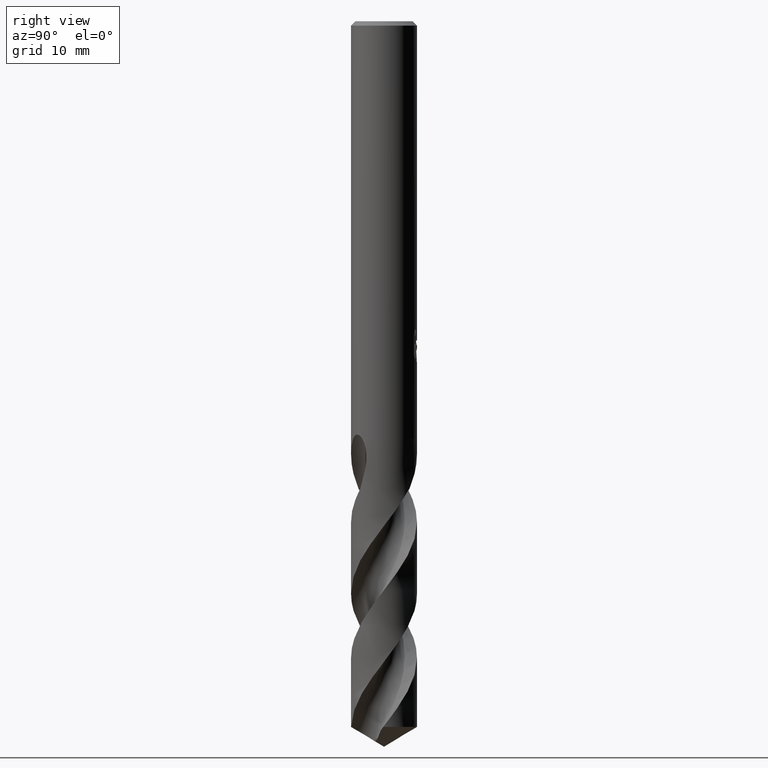
[diagram: clean part render]
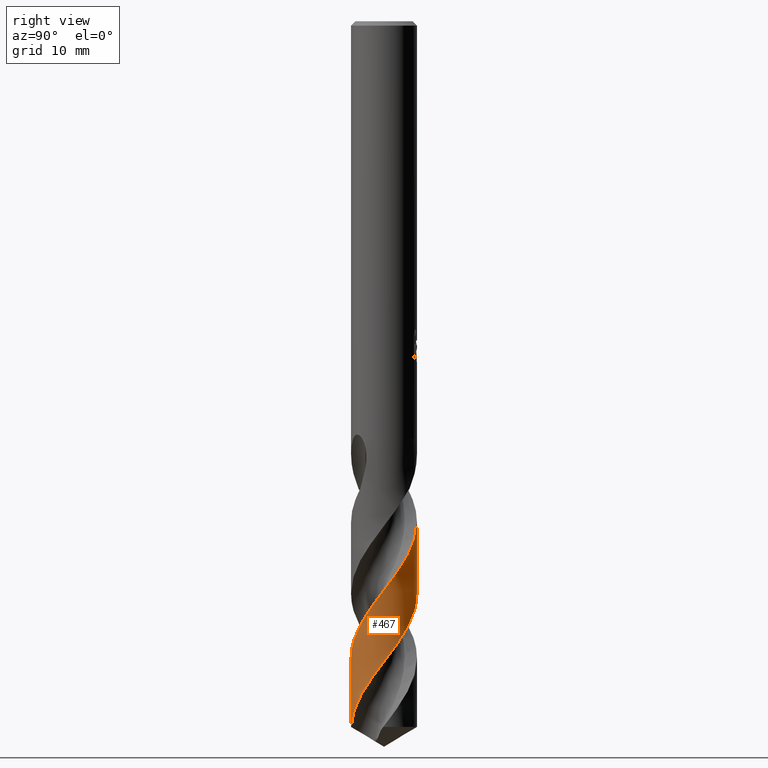
[diagram: same view with one face highlighted and labeled with its STEP entity id]
A machine part, right view. The second image highlights one B-rep face of the part: STEP entity #467.
In plain terms, the highlighted conical surface has half-angle 0 deg.
Its self-contained STEP definition (entity closure, byte-faithful):
#285=VERTEX_POINT('',#756);
#337=EDGE_CURVE('',#557,#387,#812,.T.);
#387=VERTEX_POINT('',#868);
#441=VERTEX_POINT('',#926);
#467=ADVANCED_FACE('',(#954),#955,.T.);
#515=EDGE_CURVE('',#587,#285,#1008,.T.);
#521=EDGE_CURVE('',#557,#285,#1015,.T.);
#549=EDGE_CURVE('',#441,#387,#1044,.T.);
#553=EDGE_CURVE('',#587,#441,#1048,.T.);
#557=VERTEX_POINT('',#1053);
#587=VERTEX_POINT('',#1085);
#756=CARTESIAN_POINT('',(-2.41646253959328E-014,2.9999537544148,-52.0822688169429));
#812=B_SPLINE_CURVE_WITH_KNOTS('',3,(#2497,#2498,#2499,#2500,#2501,#2502,#2503,#2504,#2505,#2506,#2507,#2508,#2509,#2510,#2511,#2512,#2513,#2514,#2515,#2516,#2517,#2518,#2519,#2520,#2521,#2522,#2523,#2524,#2525,#2526,#2527,#2528,#2529,#2530,#2531,#2532,#2533,#2534,#2535,#2536,#2537,#2538,#2539,#2540,#2541,#2542,#2543,#2544,#2545,#2546,#2547,#2548,#2549,#2550,#2551,#2552,#2553,#2554,#2555,#2556,#2557,#2558,#2559,#2560,#2561,#2562,#2563,#2564,#2565,#2566,#2567,#2568,#2569,#2570,#2571,#2572,#2573,#2574,#2575,#2576,#2577,#2578,#2579,#2580),.UNSPECIFIED.,.F.,.F.,(4,2,2,2,2,2,2,2,2,2,2,2,2,2,2,2,2,2,2,2,2,2,2,2,2,2,2,2,2,2,2,2,2,2,2,2,2,2,2,2,2,4),(0.0,0.0993045210292612,0.133810146586551,0.198759543445894,0.516186536757586,0.627581894454717,0.698954349679033,0.766036704304854,0.856023660538922,0.957565071725223,1.34121237791108,1.63577937169116,1.9223173825441,3.79579356254117,5.1535138976402,5.91578713996514,6.68924775879507,7.07780415372784,7.44370135876606,8.79860002173452,9.56043517471912,10.3343050638382,10.7225490389914,11.0750226256082,12.4456977797414,13.2055550546594,13.9797088139891,14.7546094927896,16.2481453766306,16.4087732444605,17.6175978140626,18.3915158747033,19.9131723987767,19.963088714426,21.5787231515628,21.8964662538714,23.0955762658809,23.3231324880275,23.74801103866,25.2391784537945,25.6146622117499,26.7456793365661),.UNSPECIFIED.);
#868=CARTESIAN_POINT('',(6.94614862813987E-014,-2.99997606256902,-57.9264292563744));
#926=CARTESIAN_POINT('',(3.67142020970811E-016,-3.0,-64.1974181429173));
#954=FACE_OUTER_BOUND('',#3202,.T.);
#955=CONICAL_SURFACE('',#3203,2.99995,3.81717005294894E-006);
#1008=B_SPLINE_CURVE_WITH_KNOTS('',3,(#3349,#3350,#3351,#3352,#3353,#3354,#3355,#3356,#3357,#3358,#3359,#3360,#3361,#3362,#3363,#3364,#3365,#3366,#3367,#3368,#3369,#3370,#3371,#3372,#3373,#3374,#3375,#3376,#3377,#3378,#3379,#3380,#3381,#3382,#3383,#3384,#3385,#3386,#3387,#3388,#3389,#3390,#3391,#3392,#3393,#3394,#3395,#3396,#3397,#3398,#3399,#3400,#3401,#3402,#3403,#3404,#3405,#3406,#3407,#3408,#3409,#3410,#3411,#3412,#3413,#3414,#3415,#3416,#3417,#3418,#3419,#3420,#3421,#3422),.UNSPECIFIED.,.F.,.F.,(4,2,2,2,2,2,2,2,2,2,2,2,2,2,2,2,2,2,2,2,2,2,2,2,2,2,2,2,2,2,2,2,2,2,2,2,4),(0.0,0.734443559703107,2.28909020553067,3.87107672722454,4.52092566244111,4.91625280420442,5.51545164311799,6.61360359440803,7.39941493432087,8.36750742411427,9.15464305759537,9.9163455183128,11.4959295069473,12.2870976926205,12.8988198275909,13.8596703122896,14.6470669888647,15.4388465109275,17.018371948929,17.8094509178034,18.4165457401191,19.7668953161653,20.054317907521,20.9488934499118,21.3491657615244,21.9204826354196,23.0085360274575,24.9625273542336,25.9039926740076,26.1358596392539,26.2265704914769,26.4136603411563,26.5308606774227,26.6576798480513,26.8624736480027,27.1158190130307,27.4740734602214),.UNSPECIFIED.);
#1015=LINE('',#3430,#3431);
#1044=LINE('',#3505,#3506);
#1048=CIRCLE('',#3510,3.0);
#1053=CARTESIAN_POINT('',(3.14686253189549E-015,2.99992889663983,-45.5701735662399));
#1085=CARTESIAN_POINT('',(0.183229110471739,-2.9943992875159,-64.1974181429173));
#2497=CARTESIAN_POINT('',(-2.08517356567501,2.15674644092882,-42.541));
#2498=CARTESIAN_POINT('',(-2.07136653232089,2.17009542306064,-42.5679607172071));
#2499=CARTESIAN_POINT('',(-2.05740288305878,2.18333963844889,-42.5949154837636));
#2500=CARTESIAN_POINT('',(-2.03833944362332,2.2010732531229,-42.6311910884536));
#2501=CARTESIAN_POINT('',(-2.03340304941831,2.20563452090541,-42.6405384031818));
#2502=CARTESIAN_POINT('',(-2.01910880561475,2.21875349629504,-42.6674654107753));
#2503=CARTESIAN_POINT('',(-2.00970140035085,2.22727860720342,-42.6850154723345));
#2504=CARTESIAN_POINT('',(-1.95378588229277,2.2773031306889,-42.7882460879038));
#2505=CARTESIAN_POINT('',(-1.90635447813945,2.31720611768696,-42.8713793274959));
#2506=CARTESIAN_POINT('',(-1.83822802720539,2.37085201738776,-42.9848535458934));
#2507=CARTESIAN_POINT('',(-1.82032208032303,2.38462963037159,-43.0141781612235));
#2508=CARTESIAN_POINT('',(-1.79052392669974,2.4070213715459,-43.0622691032216));
#2509=CARTESIAN_POINT('',(-1.77880494093268,2.4156951181162,-43.0810075399326));
#2510=CARTESIAN_POINT('',(-1.75589639937263,2.43239258513913,-43.1173443421457));
#2511=CARTESIAN_POINT('',(-1.74473046426743,2.44041445881005,-43.134922773311));
#2512=CARTESIAN_POINT('',(-1.71842371312067,2.4590403648595,-43.1760792555723));
#2513=CARTESIAN_POINT('',(-1.7032491589786,2.46957542179868,-43.1996223157209));
#2514=CARTESIAN_POINT('',(-1.67074038757862,2.49170252231617,-43.2497692509679));
#2515=CARTESIAN_POINT('',(-1.65322084627187,2.5033638553553,-43.2766101266082));
#2516=CARTESIAN_POINT('',(-1.56835059418453,2.55855591111031,-43.4065077294176));
#2517=CARTESIAN_POINT('',(-1.49994287342647,2.59921755867158,-43.5104159267366));
#2518=CARTESIAN_POINT('',(-1.37725341042054,2.6657792032713,-43.6937514899955));
#2519=CARTESIAN_POINT('',(-1.32314134453782,2.69304569446819,-43.7736260769849));
#2520=CARTESIAN_POINT('',(-1.21489793697561,2.74354289514315,-43.9309337941174));
#2521=CARTESIAN_POINT('',(-1.16079181051065,2.766872401133,-44.00831231946));
#2522=CARTESIAN_POINT('',(-0.747245220754315,2.93088177038523,-44.5918968135642));
#2523=CARTESIAN_POINT('',(-0.364400881494872,3.00262188342559,-45.092128487733));
#2524=CARTESIAN_POINT('',(0.301246600681809,2.99784399221996,-45.9653645696837));
#2525=CARTESIAN_POINT('',(0.579476629108054,2.95672180867058,-46.3309189368463));
#2526=CARTESIAN_POINT('',(0.998862417171053,2.83312411604424,-46.9035751683104));
#2527=CARTESIAN_POINT('',(1.14584609008904,2.77692373639258,-47.1091631917107));
#2528=CARTESIAN_POINT('',(1.4315944728874,2.64112563558017,-47.5242864739127));
#2529=CARTESIAN_POINT('',(1.56989211794067,2.56134592433265,-47.7330769820313));
#2530=CARTESIAN_POINT('',(1.76722743099324,2.42548043137687,-48.0470383029896));
#2531=CARTESIAN_POINT('',(1.83137449139064,2.37741903511863,-48.1519472001656));
#2532=CARTESIAN_POINT('',(1.95205726057974,2.2792112279197,-48.3557585299183));
#2533=CARTESIAN_POINT('',(2.00874409501485,2.22941103653896,-48.4545300449874));
#2534=CARTESIAN_POINT('',(2.26617821463591,1.98546344707412,-48.9196411149982));
#2535=CARTESIAN_POINT('',(2.44117035659592,1.76591533308861,-49.2845494919284));
#2536=CARTESIAN_POINT('',(2.66316777246103,1.38992974457594,-49.8564925805135));
#2537=CARTESIAN_POINT('',(2.73226734526263,1.24861296450732,-50.0620615484498));
#2538=CARTESIAN_POINT('',(2.84857569277941,0.954321713538972,-50.4772815153982));
#2539=CARTESIAN_POINT('',(2.89529427130937,0.801519973303657,-50.6862126930617));
#2540=CARTESIAN_POINT('',(2.94687847817654,0.567464801588643,-51.0002666278727));
#2541=CARTESIAN_POINT('',(2.9609762632949,0.48860391767592,-51.1051129813927));
#2542=CARTESIAN_POINT('',(2.98182217742696,0.33723559661302,-51.3052606348573));
#2543=CARTESIAN_POINT('',(2.98911592463882,0.264900838059879,-51.4004423135003));
#2544=CARTESIAN_POINT('',(3.01189817424962,-0.0895856301060033,-51.8663044604255));
#2545=CARTESIAN_POINT('',(2.99009601768584,-0.37286726919721,-52.2354660472074));
#2546=CARTESIAN_POINT('',(2.89500430446638,-0.802040163520816,-52.8112638235063));
#2547=CARTESIAN_POINT('',(2.84916156557794,-0.952128300489595,-53.0163849730299));
#2548=CARTESIAN_POINT('',(2.73345952294073,-1.24635871469747,-53.4312339839894));
#2549=CARTESIAN_POINT('',(2.66328988795835,-1.39001764375242,-53.640269222725));
#2550=CARTESIAN_POINT('',(2.50058711270984,-1.66504804598964,-54.0589710332706));
#2551=CARTESIAN_POINT('',(2.40836370596997,-1.79585014680383,-54.2678034445766));
#2552=CARTESIAN_POINT('',(2.10926954161825,-2.15535948931925,-54.881245255476));
#2553=CARTESIAN_POINT('',(1.87696516354511,-2.36045916975034,-55.2828624397855));
#2554=CARTESIAN_POINT('',(1.58950605847232,-2.54447932827907,-55.7299853791503));
#2555=CARTESIAN_POINT('',(1.5613059390824,-2.5618798968961,-55.7733932632667));
#2556=CARTESIAN_POINT('',(1.31848605543376,-2.70621185508577,-56.1436964306426));
#2557=CARTESIAN_POINT('',(1.08901376827304,-2.80644013303654,-56.4700096966144));
#2558=CARTESIAN_POINT('',(0.696589853822116,-2.92234611492188,-57.0061331733585));
#2559=CARTESIAN_POINT('',(0.540112726430063,-2.95526525027199,-57.2147934067345));
#2560=CARTESIAN_POINT('',(0.0705410059283623,-3.01551952592611,-57.8358235375508));
#2561=CARTESIAN_POINT('',(-0.245227733814685,-3.0063882109545,-58.244963146434));
#2562=CARTESIAN_POINT('',(-0.564028813663771,-2.94649809963033,-58.6699266597098));
#2563=CARTESIAN_POINT('',(-0.574143298194193,-2.94454399359108,-58.6834229535943));
#2564=CARTESIAN_POINT('',(-0.911327183544998,-2.8775969913416,-59.1338973602411));
#2565=CARTESIAN_POINT('',(-1.22546484117299,-2.75852072204823,-59.5689673763528));
#2566=CARTESIAN_POINT('',(-1.57017215392427,-2.55710197654036,-60.0919321143349));
#2567=CARTESIAN_POINT('',(-1.62570042227381,-2.52216303324169,-60.1778258807803));
#2568=CARTESIAN_POINT('',(-1.88505974063368,-2.34685131854478,-60.588328203468));
#2569=CARTESIAN_POINT('',(-2.07224830768865,-2.18335622461565,-60.9121462562362));
#2570=CARTESIAN_POINT('',(-2.26855404699597,-1.96362035761514,-61.2981569835071));
#2571=CARTESIAN_POINT('',(-2.29903926488694,-1.92783889480219,-61.3597103873753));
#2572=CARTESIAN_POINT('',(-2.38400329869486,-1.82323051583794,-61.5362251852768));
#2573=CARTESIAN_POINT('',(-2.43629237501203,-1.75274425658912,-61.6510597828984));
#2574=CARTESIAN_POINT('',(-2.65778322136612,-1.42508927606078,-62.1697459933858));
#2575=CARTESIAN_POINT('',(-2.78997289626212,-1.14494213587287,-62.5714499088032));
#2576=CARTESIAN_POINT('',(-2.89916334839268,-0.775140028463159,-63.0766182964137));
#2577=CARTESIAN_POINT('',(-2.91822648125649,-0.699956286106937,-63.1782022854915));
#2578=CARTESIAN_POINT('',(-2.98292787123912,-0.395775203409284,-63.5860750600233));
#2579=CARTESIAN_POINT('',(-3.00470479015349,-0.162386172242175,-63.8913763066836));
#2580=CARTESIAN_POINT('',(-2.9991532543519,0.071272413389631,-64.1974181429173));
#3202=EDGE_LOOP('',(#5119,#5120,#5121,#5122,#5123));
#3203=AXIS2_PLACEMENT_3D('',#5124,#5125,#5126);
#3349=CARTESIAN_POINT('',(0.183229110471694,-2.99439928751592,-64.1974181429173));
#3350=CARTESIAN_POINT('',(0.331222931563929,-2.98534271074374,-64.0026106572037));
#3351=CARTESIAN_POINT('',(0.478525971088263,-2.96531710033577,-63.8087541705865));
#3352=CARTESIAN_POINT('',(0.931749996235688,-2.86894572257449,-63.2026383108427));
#3353=CARTESIAN_POINT('',(1.22736546962339,-2.75547491728859,-62.790409870084));
#3354=CARTESIAN_POINT('',(1.77741178779803,-2.43790330361773,-61.9600108304099));
#3355=CARTESIAN_POINT('',(2.02729857689143,-2.23439401320938,-61.5406282517813));
#3356=CARTESIAN_POINT('',(2.32772802561085,-1.89707844029733,-60.9492353245979));
#3357=CARTESIAN_POINT('',(2.40866600366998,-1.79319887007671,-60.7776183238618));
#3358=CARTESIAN_POINT('',(2.52747718400746,-1.61807950900977,-60.5007557310638));
#3359=CARTESIAN_POINT('',(2.56968963270507,-1.55015549746697,-60.3960946138613));
#3360=CARTESIAN_POINT('',(2.66882157979513,-1.37547863815051,-60.132253037805));
#3361=CARTESIAN_POINT('',(2.72219427085322,-1.26659854861663,-59.9725364454412));
#3362=CARTESIAN_POINT('',(2.85442725505717,-0.949498163802901,-59.5219640198716));
#3363=CARTESIAN_POINT('',(2.91690270570458,-0.735502562141566,-59.2331534627876));
#3364=CARTESIAN_POINT('',(2.98255683038415,-0.359894960627684,-58.7332102803071));
#3365=CARTESIAN_POINT('',(2.99743261799975,-0.201427167638312,-58.5236746790784));
#3366=CARTESIAN_POINT('',(3.00244505309509,0.153589423120098,-58.0582253001309));
#3367=CARTESIAN_POINT('',(2.98600609242657,0.349358876834844,-57.8031865299844));
#3368=CARTESIAN_POINT('',(2.92176953166349,0.698936311788767,-57.3376022219151));
#3369=CARTESIAN_POINT('',(2.88056738068468,0.852934154750116,-57.1277805409262));
#3370=CARTESIAN_POINT('',(2.77587754797026,1.14806327866628,-56.7168975307007));
#3371=CARTESIAN_POINT('',(2.71324456090199,1.28916348170794,-56.5157952455528));
#3372=CARTESIAN_POINT('',(2.48793472092814,1.70657662693964,-55.8955418214087));
#3373=CARTESIAN_POINT('',(2.29189774774103,1.96199295186545,-55.4760288899119));
#3374=CARTESIAN_POINT('',(1.9426056568262,2.29167215774066,-54.8479688334708));
#3375=CARTESIAN_POINT('',(1.81757553128612,2.39201654603063,-54.6392572213575));
#3376=CARTESIAN_POINT('',(1.58312962915286,2.55122386248997,-54.266994289944));
#3377=CARTESIAN_POINT('',(1.47659633634462,2.61433958192512,-54.1039011542939));
#3378=CARTESIAN_POINT('',(1.1931449923749,2.75934946448758,-53.686375942247));
#3379=CARTESIAN_POINT('',(1.0117011459979,2.83092118307412,-53.4331119509204));
#3380=CARTESIAN_POINT('',(0.671124867701537,2.92827358044476,-52.9692782128261));
#3381=CARTESIAN_POINT('',(0.514716206506049,2.95975347249227,-52.7593654824064));
#3382=CARTESIAN_POINT('',(0.197752624438174,2.99770587689485,-52.3403290803468));
#3383=CARTESIAN_POINT('',(0.0373927157149721,3.00400776251891,-52.1313119006551));
#3384=CARTESIAN_POINT('',(-0.442671081738681,2.98432179720015,-51.5030599830809));
#3385=CARTESIAN_POINT('',(-0.758200598441641,2.92014615169399,-51.0835288558955));
#3386=CARTESIAN_POINT('',(-1.20767514242661,2.75079932957999,-50.4554352088158));
#3387=CARTESIAN_POINT('',(-1.35268917615241,2.68243524700362,-50.2467273379674));
#3388=CARTESIAN_POINT('',(-1.59779945950071,2.54199808031343,-49.8756939916583));
#3389=CARTESIAN_POINT('',(-1.70046620044366,2.47450721887062,-49.7138408738567));
#3390=CARTESIAN_POINT('',(-2.01757528934669,2.23691020584466,-49.1941430647313));
#3391=CARTESIAN_POINT('',(-2.21268625360529,2.04402566508475,-48.8404099925939));
#3392=CARTESIAN_POINT('',(-2.41420800011544,1.78174283922661,-48.4052307332144));
#3393=CARTESIAN_POINT('',(-2.44821791069609,1.73471887151306,-48.328723337532));
#3394=CARTESIAN_POINT('',(-2.5827130133684,1.53688102490097,-48.0142503405455));
#3395=CARTESIAN_POINT('',(-2.67088870249585,1.37802923796852,-47.777794717178));
#3396=CARTESIAN_POINT('',(-2.77708714066243,1.13754441637091,-47.434032448426));
#3397=CARTESIAN_POINT('',(-2.8068539835656,1.06196336990154,-47.3278540997841));
#3398=CARTESIAN_POINT('',(-2.871533531997,0.875963310928897,-47.0696581975943));
#3399=CARTESIAN_POINT('',(-2.90313963783474,0.764668603426192,-46.9172106191606));
#3400=CARTESIAN_POINT('',(-2.97602452531732,0.437301924164987,-46.4763964202637));
#3401=CARTESIAN_POINT('',(-3.00013181537239,0.21778283470999,-46.1900707482827));
#3402=CARTESIAN_POINT('',(-2.99956450868067,-0.398782852343077,-45.3836788114389));
#3403=CARTESIAN_POINT('',(-2.92083923493451,-0.791146287181891,-44.8631438504583));
#3404=CARTESIAN_POINT('',(-2.6938252292041,-1.333958378279,-44.098199040389));
#3405=CARTESIAN_POINT('',(-2.60546181809954,-1.49846302985537,-43.8638816461624));
#3406=CARTESIAN_POINT('',(-2.47830089427216,-1.69104451046785,-43.5484386308936));
#3407=CARTESIAN_POINT('',(-2.4526519834163,-1.72800215393469,-43.4857929920538));
#3408=CARTESIAN_POINT('',(-2.41636747900575,-1.77791815824182,-43.3978164740405));
#3409=CARTESIAN_POINT('',(-2.40610752514132,-1.79177655508083,-43.3730098483865));
#3410=CARTESIAN_POINT('',(-2.37452697060418,-1.83368258842796,-43.2967779845383));
#3411=CARTESIAN_POINT('',(-2.36125163356142,-1.85066984794288,-43.2639259738363));
#3412=CARTESIAN_POINT('',(-2.32963115885907,-1.89016329840287,-43.1921010223378));
#3413=CARTESIAN_POINT('',(-2.3170739095253,-1.9055437280429,-43.1647326963665));
#3414=CARTESIAN_POINT('',(-2.29007247095796,-1.93792808579026,-43.1082946954686));
#3415=CARTESIAN_POINT('',(-2.27558189370643,-1.95493292537954,-43.0793198049141));
#3416=CARTESIAN_POINT('',(-2.23640737461358,-1.99983775089263,-43.0043947105781));
#3417=CARTESIAN_POINT('',(-2.21100497791694,-2.02792737822081,-42.9590968218452));
#3418=CARTESIAN_POINT('',(-2.15124340500979,-2.09140802915762,-42.8596581685292));
#3419=CARTESIAN_POINT('',(-2.11632609566593,-2.12680461125861,-42.8061963927265));
#3420=CARTESIAN_POINT('',(-2.02719288729397,-2.21251963736984,-42.6802137141876));
#3421=CARTESIAN_POINT('',(-1.97133200915648,-2.26259998142726,-42.6094758507039));
#3422=CARTESIAN_POINT('',(-1.91162049097478,-2.31197126018779,-42.541));
#3430=CARTESIAN_POINT('',(-3.67615668290846E-016,2.99995,-51.0987090714587));
#3431=VECTOR('',#5200,1.0);
#3505=CARTESIAN_POINT('',(3.67135897939042E-016,-2.99995,-51.0987090714587));
#3506=VECTOR('',#5211,1.0);
#3510=AXIS2_PLACEMENT_3D('',#5213,#5214,#5215);
#5119=ORIENTED_EDGE('',*,*,#521,.F.);
#5120=ORIENTED_EDGE('',*,*,#337,.T.);
#5121=ORIENTED_EDGE('',*,*,#549,.F.);
#5122=ORIENTED_EDGE('',*,*,#553,.F.);
#5123=ORIENTED_EDGE('',*,*,#515,.T.);
#5124=CARTESIAN_POINT('',(0.0,0.0,-51.0987090714587));
#5125=DIRECTION('',(0.0,-0.0,-1.0));
#5126=DIRECTION('',(0.0,1.0,0.0));
#5200=DIRECTION('',(-4.67453070045043E-022,3.81717005293967E-006,-0.999999999992715));
#5211=DIRECTION('',(-4.67453070045043E-022,3.81717005293967E-006,0.999999999992715));
#5213=CARTESIAN_POINT('',(0.0,0.0,-64.1974181429173));
#5214=DIRECTION('',(0.0,0.0,-1.0));
#5215=DIRECTION('',(0.0,1.0,0.0));